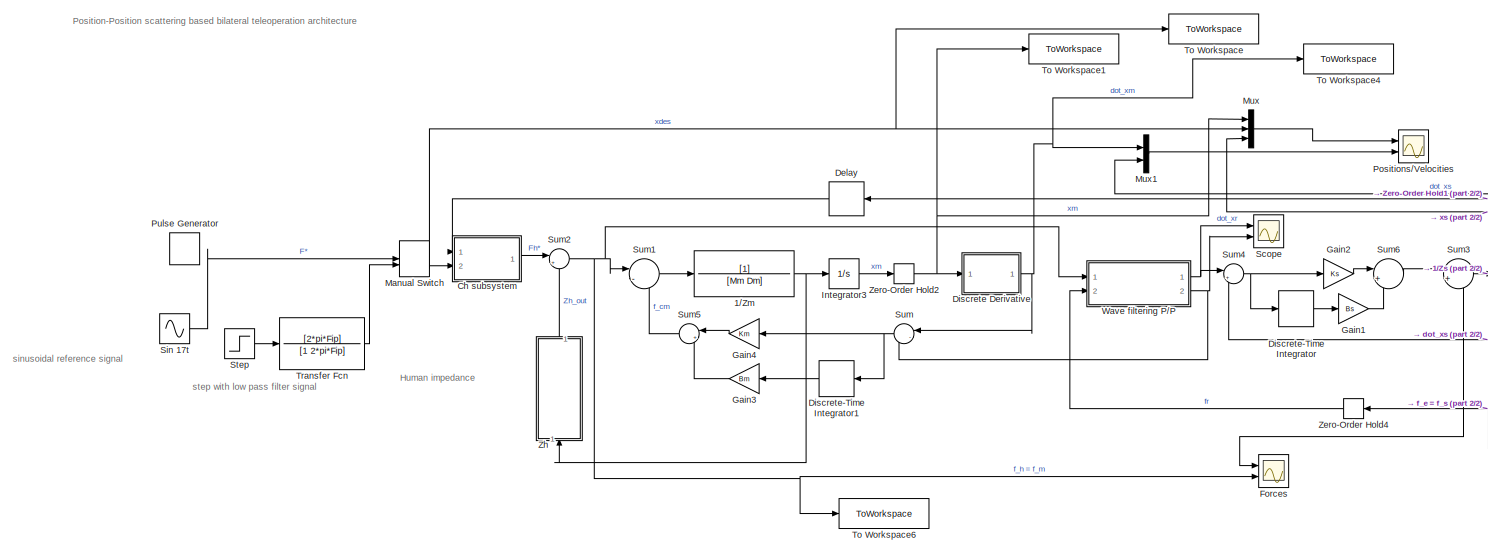
[diagram: root canvas - part 1/2, center side, full height]
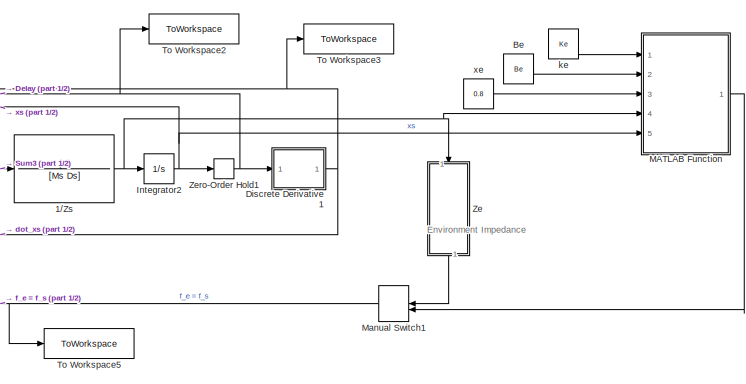
[diagram: root canvas - part 2/2, middle right region]
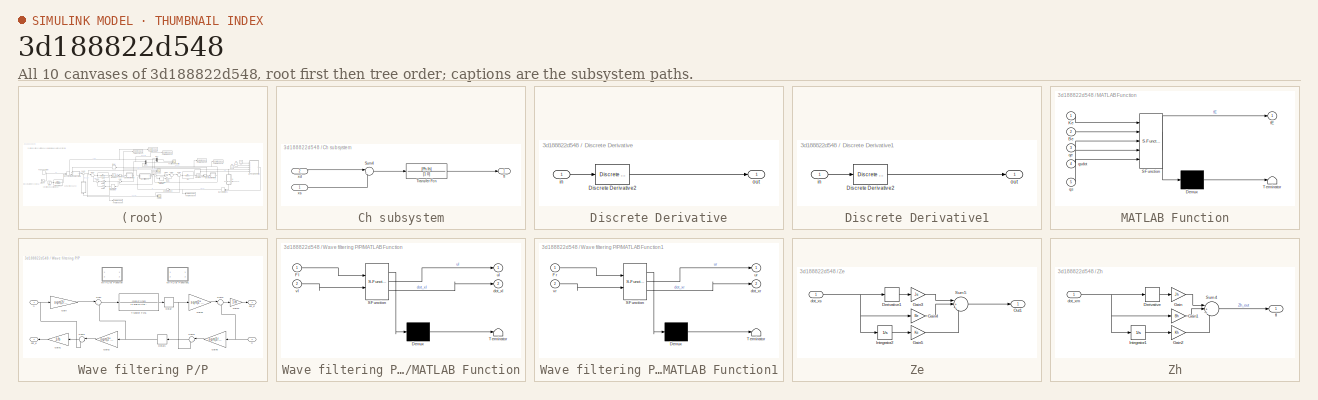
[diagram: thumbnail index - all 10 canvases of the model, root first then tree order]
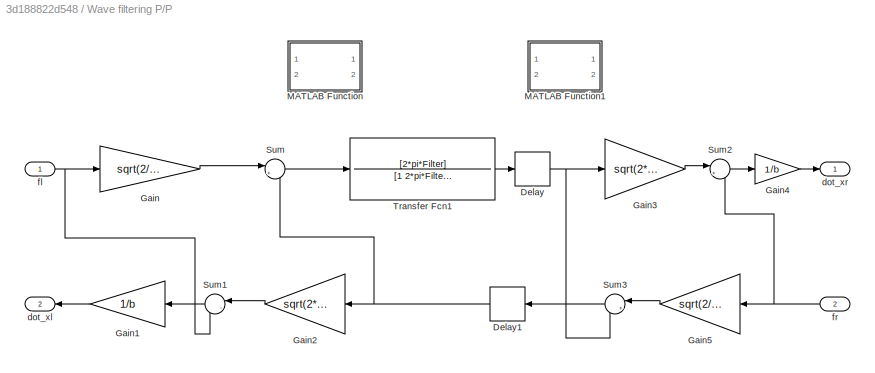
MODEL slx_3d188822d548
KIND model
CONFIG AbsTol = auto
CONFIG EnableMultiTasking = off
CONFIG FixedStep = Ts
CONFIG MaxStep = auto
CONFIG MinStep = auto
CONFIG RelTol = 1e-3
CONFIG SampleTimeConstraint = Unconstrained
CONFIG SolverName = FixedStepAuto
CONFIG StartTime = 0.0
CONFIG StopTime = 30
BLOCK [TransferFcn] 1//Zm
  Denominator = [Mm Dm]
  NameLocation = top
BLOCK [TransferFcn] 1//Zs
  Denominator = [Ms Ds]
  NameLocation = top
BLOCK [Constant] Be
  NameLocation = top
  Value = Be
BLOCK [SubSystem] Ch subsystem
  Ports = [2, 1]
  RequestExecContextInheritance = off
BLOCK [Sum] Ch subsystem/Sum4
  Inputs = |+-
  Ports = [2, 1]
BLOCK [TransferFcn] Ch subsystem/Transfer Fcn
  Denominator = [1 0]
  Numerator = [Ph Ih]
BLOCK [Outport] Ch subsystem/fl
BLOCK [Inport] Ch subsystem/xd
  Port = 2
BLOCK [Inport] Ch subsystem/xs
BLOCK [Delay] Delay
  DelayLength = delay
  InputPortMap = u0
  NameLocation = top
  Ports = [1, 1]
  SampleTime = Ts
BLOCK [SubSystem] Discrete Derivative
  Ports = [1, 1]
  RequestExecContextInheritance = off
BLOCK [Reference] Discrete Derivative/Discrete Derivative2  REF=simulink/Discrete/Discrete Derivative
  Ports = [1, 1]
  SourceBlock = simulink/Discrete/Discrete Derivative
  SourceProductBaseCode = SL
  SourceType = Discrete Derivative
BLOCK [Inport] Discrete Derivative/in
BLOCK [Outport] Discrete Derivative/out
BLOCK [SubSystem] Discrete Derivative1
  Ports = [1, 1]
  RequestExecContextInheritance = off
BLOCK [Reference] Discrete Derivative1/Discrete Derivative2  REF=simulink/Discrete/Discrete Derivative
  Ports = [1, 1]
  SourceBlock = simulink/Discrete/Discrete Derivative
  SourceProductBaseCode = SL
  SourceType = Discrete Derivative
BLOCK [Inport] Discrete Derivative1/in
BLOCK [Outport] Discrete Derivative1/out
BLOCK [DiscreteIntegrator] Discrete-Time Integrator
  ICPrevOutput = DiscIntNeverNeededParam
  ICPrevScaledInput = DiscIntNeverNeededParam
  InitialConditionSetting = Auto
  Ports = [1, 1]
  SampleTime = -1
BLOCK [DiscreteIntegrator] Discrete-Time Integrator1
  ICPrevOutput = DiscIntNeverNeededParam
  ICPrevScaledInput = DiscIntNeverNeededParam
  InitialConditionSetting = Auto
  NameLocation = top
  Ports = [1, 1]
  SampleTime = -1
BLOCK [Scope] Forces
  Floating = off
  NumInputPorts = 2
  Ports = [2]
  ScopeSpecificationString = Simulink.scopes.TimeScopeBlockCfg('CurrentConfiguration', extmgr.ConfigurationSet(extmgr.Configuration('Core','General UI',true),extmgr.Configuration('Core','Source UI',true),extmgr.Configuration('Sources','WiredSimulink',true,'DataLoggingVariableName','ScopeData1'),extmgr.Configuration('Visuals','Time Domain',true,'SerializedDisplays',{struct('MinYLimReal','-0.58671','MaxYLimReal','3.54528','YLab...<+1483ch>
BLOCK [Gain] Gain1
  Gain = Bs
BLOCK [Gain] Gain2
  Gain = Ks
BLOCK [Gain] Gain3
  Gain = Bm
  NameLocation = top
BLOCK [Gain] Gain4
  Gain = Km
  NameLocation = top
BLOCK [Integrator] Integrator2
  Ports = [1, 1]
BLOCK [Integrator] Integrator3
  Ports = [1, 1]
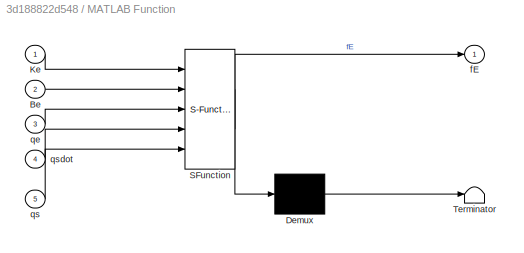
BLOCK [SubSystem] MATLAB Function
  ErrorFcn = Stateflow.Translate.translate
  PermitHierarchicalResolution = ExplicitOnly
  Ports = [5, 1]
  RequestExecContextInheritance = off
  SFBlockType = MATLAB Function
  TreatAsAtomicUnit = on
BLOCK [Demux] MATLAB Function/ Demux 
  Outputs = 1
  Ports = [1, 1]
BLOCK [S-Function] MATLAB Function/ SFunction 
  EnableBusSupport = on
  FunctionName = sf_sfun
  PortCounts = [5 2]
  Ports = [5, 2]
  SFcnIsStateOwnerBlock = off
  SFunctionDeploymentMode = off
  Tag = Stateflow S-Function 2
BLOCK [Terminator] MATLAB Function/ Terminator 
BLOCK [Inport] MATLAB Function/Be
  Port = 2
BLOCK [Inport] MATLAB Function/Ke
BLOCK [Outport] MATLAB Function/fE
BLOCK [Inport] MATLAB Function/qe
  Port = 3
BLOCK [Inport] MATLAB Function/qs
  Port = 5
BLOCK [Inport] MATLAB Function/qsdot
  Port = 4
BLOCK [ManualSwitch] Manual Switch
  CurrentSetting = 0
BLOCK [ManualSwitch] Manual Switch1
  CurrentSetting = 0
  NameLocation = top
BLOCK [Mux] Mux
  DisplayOption = bar
  Inputs = 3
  Ports = [3, 1]
BLOCK [Mux] Mux1
  DisplayOption = bar
  Inputs = 2
  Ports = [2, 1]
BLOCK [Scope] Positions//Velocities
  Floating = off
  NumInputPorts = 2
  Ports = [2]
  ScopeSpecificationString = Simulink.scopes.TimeScopeBlockCfg('CurrentConfiguration', extmgr.ConfigurationSet(extmgr.Configuration('Core','General UI',true),extmgr.Configuration('Core','Source UI',true),extmgr.Configuration('Sources','WiredSimulink',true),extmgr.Configuration('Visuals','Time Domain',true,'SerializedDisplays',{struct('MinYLimReal','-1.24975','MaxYLimReal','1.24975','YLabelReal','','MinYLimMag','0.00000','MaxY...<+2045ch>
BLOCK [DiscretePulseGenerator] Pulse Generator
  Amplitude = A
  PhaseDelay = 1
  Ports = [0, 1]
  PulseType = Time based
  PulseWidth = 50
BLOCK [Scope] Scope
  Floating = off
  NumInputPorts = 2
  Ports = [2]
  ScopeSpecificationString = Simulink.scopes.TimeScopeBlockCfg('CurrentConfiguration', extmgr.ConfigurationSet(extmgr.Configuration('Core','General UI',true),extmgr.Configuration('Core','Source UI',true),extmgr.Configuration('Sources','WiredSimulink',true,'DataLoggingVariableName','ScopeData1'),extmgr.Configuration('Visuals','Time Domain',true,'SerializedDisplays',{struct('MinYLimReal','-78.42677','MaxYLimReal','29.31263','YL...<+1479ch>
BLOCK [Sin] Sin 17t
  Amplitude = A
  Frequency = 2*pi*Fc
  Ports = [0, 1]
  SampleTime = 0
BLOCK [Step] Step
  After = A
  SampleTime = 0
BLOCK [Sum] Sum
  Inputs = |-+
  NameLocation = top
  Ports = [2, 1]
BLOCK [Sum] Sum1
  Inputs = |-+
  Ports = [2, 1]
BLOCK [Sum] Sum2
  Inputs = |+-
  Ports = [2, 1]
BLOCK [Sum] Sum3
  Inputs = |+-
  Ports = [2, 1]
BLOCK [Sum] Sum4
  Inputs = |+-
  Ports = [2, 1]
BLOCK [Sum] Sum5
  Inputs = |++
  NameLocation = top
  Ports = [2, 1]
BLOCK [Sum] Sum6
  Inputs = |++
  Ports = [2, 1]
BLOCK [ToWorkspace] To Workspace
  FixptAsFi = on
  MaxDataPoints = inf
  Ports = [1]
  SampleTime = -1
  SaveFormat = Timeseries
  VariableName = xd
BLOCK [ToWorkspace] To Workspace1
  FixptAsFi = on
  MaxDataPoints = inf
  Ports = [1]
  SampleTime = -1
  SaveFormat = Timeseries
  VariableName = xm
BLOCK [ToWorkspace] To Workspace2
  FixptAsFi = on
  MaxDataPoints = inf
  Ports = [1]
  SampleTime = -1
  SaveFormat = Timeseries
  VariableName = xs
BLOCK [ToWorkspace] To Workspace3
  FixptAsFi = on
  MaxDataPoints = inf
  Ports = [1]
  SampleTime = -1
  SaveFormat = Timeseries
  VariableName = dot_xs
BLOCK [ToWorkspace] To Workspace4
  FixptAsFi = on
  MaxDataPoints = inf
  Ports = [1]
  SampleTime = -1
  SaveFormat = Timeseries
  VariableName = dot_xm
BLOCK [ToWorkspace] To Workspace5
  FixptAsFi = on
  MaxDataPoints = inf
  Ports = [1]
  SampleTime = -1
  SaveFormat = Timeseries
  VariableName = fe
BLOCK [ToWorkspace] To Workspace6
  FixptAsFi = on
  MaxDataPoints = inf
  Ports = [1]
  SampleTime = -1
  SaveFormat = Timeseries
  VariableName = fh
BLOCK [TransferFcn] Transfer Fcn
  Denominator = [1 2*pi*Fip]
  Numerator = [2*pi*Fip]
BLOCK [SubSystem] Wave filtering P//P
  Ports = [2, 2]
  RequestExecContextInheritance = off
BLOCK [Delay] Wave filtering P//P/Delay
  DelayLength = delay
  InputPortMap = u0
  Ports = [1, 1]
  SampleTime = Ts
BLOCK [Delay] Wave filtering P//P/Delay1
  DelayLength = delay
  InputPortMap = u0
  NameLocation = top
  Ports = [1, 1]
  SampleTime = Ts
BLOCK [Gain] Wave filtering P//P/Gain
  Gain = sqrt(2/b)
BLOCK [Gain] Wave filtering P//P/Gain1
  Gain = 1/b
  NameLocation = top
BLOCK [Gain] Wave filtering P//P/Gain2
  Gain = sqrt(2*b)
  NameLocation = top
BLOCK [Gain] Wave filtering P//P/Gain3
  Gain = sqrt(2*b)
BLOCK [Gain] Wave filtering P//P/Gain4
  Gain = 1/b
BLOCK [Gain] Wave filtering P//P/Gain5
  Gain = sqrt(2/b)
  NameLocation = top
BLOCK [SubSystem] Wave filtering P//P/MATLAB Function
  Commented = on
  ErrorFcn = Stateflow.Translate.translate
  PermitHierarchicalResolution = ExplicitOnly
  Ports = [2, 2]
  RequestExecContextInheritance = off
  SFBlockType = MATLAB Function
  TreatAsAtomicUnit = on
BLOCK [Demux] Wave filtering P//P/MATLAB Function/ Demux 
  Outputs = 1
  Ports = [1, 1]
BLOCK [S-Function] Wave filtering P//P/MATLAB Function/ SFunction 
  EnableBusSupport = on
  FunctionName = sf_sfun
  PortCounts = [2 3]
  Ports = [2, 3]
  SFcnIsStateOwnerBlock = off
  SFunctionDeploymentMode = off
  Tag = Stateflow S-Function 1
BLOCK [Terminator] Wave filtering P//P/MATLAB Function/ Terminator 
BLOCK [Inport] Wave filtering P//P/MATLAB Function/Fl
BLOCK [Outport] Wave filtering P//P/MATLAB Function/dot_xl
  Port = 2
BLOCK [Outport] Wave filtering P//P/MATLAB Function/ul
BLOCK [Inport] Wave filtering P//P/MATLAB Function/vl
  Port = 2
BLOCK [SubSystem] Wave filtering P//P/MATLAB Function1
  Commented = on
  ErrorFcn = Stateflow.Translate.translate
  PermitHierarchicalResolution = ExplicitOnly
  Ports = [2, 2]
  RequestExecContextInheritance = off
  SFBlockType = MATLAB Function
  TreatAsAtomicUnit = on
BLOCK [Demux] Wave filtering P//P/MATLAB Function1/ Demux 
  Outputs = 1
  Ports = [1, 1]
BLOCK [S-Function] Wave filtering P//P/MATLAB Function1/ SFunction 
  EnableBusSupport = on
  FunctionName = sf_sfun
  PortCounts = [2 3]
  Ports = [2, 3]
  SFcnIsStateOwnerBlock = off
  SFunctionDeploymentMode = off
  Tag = Stateflow S-Function 3
BLOCK [Terminator] Wave filtering P//P/MATLAB Function1/ Terminator 
BLOCK [Inport] Wave filtering P//P/MATLAB Function1/Fr
BLOCK [Outport] Wave filtering P//P/MATLAB Function1/dot_xr
  Port = 2
BLOCK [Outport] Wave filtering P//P/MATLAB Function1/ur
BLOCK [Inport] Wave filtering P//P/MATLAB Function1/vr
  Port = 2
BLOCK [Sum] Wave filtering P//P/Sum
  Inputs = |+-
  Ports = [2, 1]
BLOCK [Sum] Wave filtering P//P/Sum1
  Inputs = |-+
  NameLocation = top
  Ports = [2, 1]
BLOCK [Sum] Wave filtering P//P/Sum2
  Inputs = |+-
  Ports = [2, 1]
BLOCK [Sum] Wave filtering P//P/Sum3
  Inputs = |+-
  NameLocation = top
  Ports = [2, 1]
BLOCK [TransferFcn] Wave filtering P//P/Transfer Fcn1
  Denominator = [1 2*pi*Filter]
  Numerator = [2*pi*Filter]
BLOCK [Outport] Wave filtering P//P/dot_xl
  NameLocation = top
  Port = 2
BLOCK [Outport] Wave filtering P//P/dot_xr
BLOCK [Inport] Wave filtering P//P/fl
BLOCK [Inport] Wave filtering P//P/fr
  NameLocation = top
  Port = 2
BLOCK [SubSystem] Ze
  NameLocation = left
  Ports = [1, 1]
  RequestExecContextInheritance = off
BLOCK [Derivative] Ze/Derivative1
BLOCK [Gain] Ze/Gain3
  Gain = Je
BLOCK [Gain] Ze/Gain4
  Gain = Be
BLOCK [Gain] Ze/Gain5
  Gain = Ke
BLOCK [Integrator] Ze/Integrator2
  Ports = [1, 1]
BLOCK [Outport] Ze/Out1
BLOCK [Sum] Ze/Sum5
  Inputs = |+++
  Ports = [3, 1]
BLOCK [Inport] Ze/dot_xs
BLOCK [ZeroOrderHold] Zero-Order Hold1
  SampleTime = Ts
BLOCK [ZeroOrderHold] Zero-Order Hold2
  SampleTime = Ts
BLOCK [ZeroOrderHold] Zero-Order Hold4
  SampleTime = Ts
BLOCK [SubSystem] Zh
  NameLocation = right
  Ports = [1, 1]
  RequestExecContextInheritance = off
BLOCK [Derivative] Zh/Derivative
BLOCK [Gain] Zh/Gain
  Gain = Jh
BLOCK [Gain] Zh/Gain1
  Gain = Bh
BLOCK [Gain] Zh/Gain2
  Gain = Kh
BLOCK [Integrator] Zh/Integrator1
  Ports = [1, 1]
BLOCK [Sum] Zh/Sum4
  Inputs = |+++
  Ports = [3, 1]
BLOCK [Inport] Zh/dot_xm
BLOCK [Outport] Zh/fl
BLOCK [Constant] ke
  NameLocation = top
  Value = Ke
BLOCK [Constant] xe
  NameLocation = top
  Value = 0.8
ANNOTATION (root): sinusoidal reference signal
ANNOTATION (root): step with low pass filter signal
ANNOTATION (root): Position-Position scattering based bilateral teleoperation architecture
ANNOTATION (root): Environment Impedance
ANNOTATION (root): Human impedance
NET 1//Zm:1 -> Integrator3:1, Zh:1
NET 1//Zs:1 -> Integrator2:1, MATLAB Function:4, Ze:1
LINE Be:1 -> MATLAB Function:2
LINE Ch subsystem/Sum4:1 -> Ch subsystem/Transfer Fcn:1
LINE Ch subsystem/Transfer Fcn:1 -> Ch subsystem/fl:1
LINE Ch subsystem/xd:1 -> Ch subsystem/Sum4:1
LINE Ch subsystem/xs:1 -> Ch subsystem/Sum4:2
LINE Ch subsystem:1 -> Sum2:1
LINE Delay:1 -> Ch subsystem:1
LINE Discrete Derivative/Discrete Derivative2:1 -> Discrete Derivative/out:1
LINE Discrete Derivative/in:1 -> Discrete Derivative/Discrete Derivative2:1
LINE Discrete Derivative1/Discrete Derivative2:1 -> Discrete Derivative1/out:1
LINE Discrete Derivative1/in:1 -> Discrete Derivative1/Discrete Derivative2:1
NET Discrete Derivative1:1 -> Mux1:2, Sum4:2, To Workspace3:1
NET Discrete Derivative:1 -> Mux1:1, Sum:1, To Workspace4:1
LINE Discrete-Time Integrator1:1 -> Gain3:1
LINE Discrete-Time Integrator:1 -> Gain1:1
LINE Gain1:1 -> Sum6:2
LINE Gain2:1 -> Sum6:1
LINE Gain3:1 -> Sum5:2
LINE Gain4:1 -> Sum5:1
NET Integrator2:1 -> MATLAB Function:5, Mux:3, Zero-Order Hold1:1
LINE Integrator3:1 -> Zero-Order Hold2:1
LINE MATLAB Function:1 -> Manual Switch1:2
NET Manual Switch1:1 -> Forces:1, Sum3:2, To Workspace5:1, Zero-Order Hold4:1
NET Manual Switch:1 -> Ch subsystem:2, Mux:2, To Workspace:1
LINE Mux1:1 -> Positions//Velocities:2
LINE Mux:1 -> Positions//Velocities:1
LINE Sin 17t:1 -> Manual Switch:1
LINE Step:1 -> Transfer Fcn:1
LINE Sum1:1 -> 1//Zm:1
NET Sum2:1 -> Forces:2, Sum1:1, To Workspace6:1, Wave filtering P//P:1
LINE Sum3:1 -> 1//Zs:1
NET Sum4:1 -> Discrete-Time Integrator:1, Gain2:1
LINE Sum5:1 -> Sum1:2
LINE Sum6:1 -> Sum3:1
NET Sum:1 -> Discrete-Time Integrator1:1, Gain4:1
LINE Transfer Fcn:1 -> Manual Switch:2
NET Wave filtering P//P/Delay1:1 -> Wave filtering P//P/Gain2:1, Wave filtering P//P/Sum:2
NET Wave filtering P//P/Delay:1 -> Wave filtering P//P/Gain3:1, Wave filtering P//P/Sum3:2
LINE Wave filtering P//P/Gain1:1 -> Wave filtering P//P/dot_xl:1
LINE Wave filtering P//P/Gain2:1 -> Wave filtering P//P/Sum1:1
LINE Wave filtering P//P/Gain3:1 -> Wave filtering P//P/Sum2:1
LINE Wave filtering P//P/Gain4:1 -> Wave filtering P//P/dot_xr:1
LINE Wave filtering P//P/Gain5:1 -> Wave filtering P//P/Sum3:1
LINE Wave filtering P//P/Gain:1 -> Wave filtering P//P/Sum:1
LINE Wave filtering P//P/Sum1:1 -> Wave filtering P//P/Gain1:1
LINE Wave filtering P//P/Sum2:1 -> Wave filtering P//P/Gain4:1
LINE Wave filtering P//P/Sum3:1 -> Wave filtering P//P/Delay1:1
LINE Wave filtering P//P/Sum:1 -> Wave filtering P//P/Transfer Fcn1:1
LINE Wave filtering P//P/Transfer Fcn1:1 -> Wave filtering P//P/Delay:1
NET Wave filtering P//P/fl:1 -> Wave filtering P//P/Gain:1, Wave filtering P//P/Sum1:2
NET Wave filtering P//P/fr:1 -> Wave filtering P//P/Gain5:1, Wave filtering P//P/Sum2:2
NET Wave filtering P//P:1 -> Scope:1, Sum4:1
NET Wave filtering P//P:2 -> Scope:2, Sum:2
LINE Ze/Derivative1:1 -> Ze/Gain3:1
LINE Ze/Gain3:1 -> Ze/Sum5:1
LINE Ze/Gain4:1 -> Ze/Sum5:2
LINE Ze/Gain5:1 -> Ze/Sum5:3
LINE Ze/Integrator2:1 -> Ze/Gain5:1
LINE Ze/Sum5:1 -> Ze/Out1:1
NET Ze/dot_xs:1 -> Ze/Derivative1:1, Ze/Gain4:1, Ze/Integrator2:1
LINE Ze:1 -> Manual Switch1:1
NET Zero-Order Hold1:1 -> Delay:1, Discrete Derivative1:1, To Workspace2:1
NET Zero-Order Hold2:1 -> Discrete Derivative:1, Mux:1, To Workspace1:1
LINE Zero-Order Hold4:1 -> Wave filtering P//P:2
LINE Zh/Derivative:1 -> Zh/Gain:1
LINE Zh/Gain1:1 -> Zh/Sum4:2
LINE Zh/Gain2:1 -> Zh/Sum4:3
LINE Zh/Gain:1 -> Zh/Sum4:1
LINE Zh/Integrator1:1 -> Zh/Gain2:1
LINE Zh/Sum4:1 -> Zh/fl:1
NET Zh/dot_xm:1 -> Zh/Derivative:1, Zh/Gain1:1, Zh/Integrator1:1
LINE Zh:1 -> Sum2:2
LINE ke:1 -> MATLAB Function:1
LINE xe:1 -> MATLAB Function:3
note: NET lines group one-source signal fan-out (src -> all destinations, sorted); 1:1 wires keep LINE
CHART Wave filtering P//P/MATLAB Function states=1 transitions=1
  STATE_LABEL 'eML_blk_kernel()'
  STATE_LABEL 'SCRIPT:\nfunction [ul, dot_xl] = left(Fl, vl)\n    ul = sqrt(2/1)*Fl - vl;\n    dot_xl = 1/1*(Fl-sqrt(2*1)*vl);\nend\n'
CHART MATLAB Function states=1 transitions=1
  STATE_LABEL 'eML_blk_kernel()'
  STATE_LABEL 'SCRIPT:\nfunction fE = environment(Ke, Be, qe, qsdot, qs)\n    if qs > qe\n        fE = Ke * (qs - qe) + Be * qsdot; % Plot both contributions Ke and Be\n    else\n        fE = 0;\n    end\nend\n'
CHART Wave filtering P//P/MATLAB Function1 states=1 transitions=1
  STATE_LABEL 'eML_blk_kernel()'
  STATE_LABEL 'SCRIPT:\nfunction [ur, dot_xr] = right(Fr, vr)\n    ur = sqrt(2/1)*Fr - vr;\n    dot_xr = -1/1*(Fr-sqrt(2*1)*vr);\nend\n'
CHART  states=0 transitions=0
CHART  states=0 transitions=0
CHART  states=0 transitions=0
